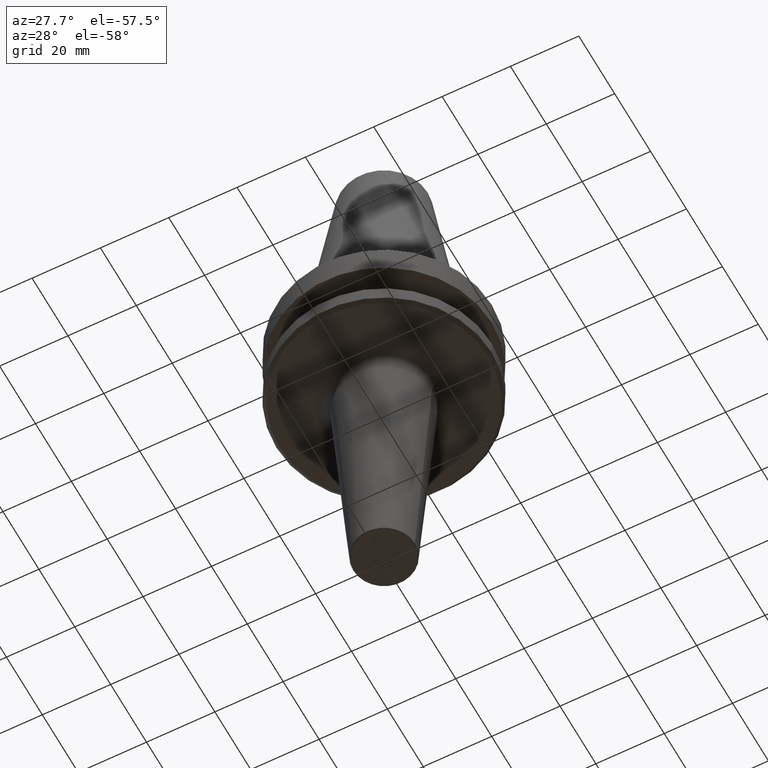
[diagram: clean part render]
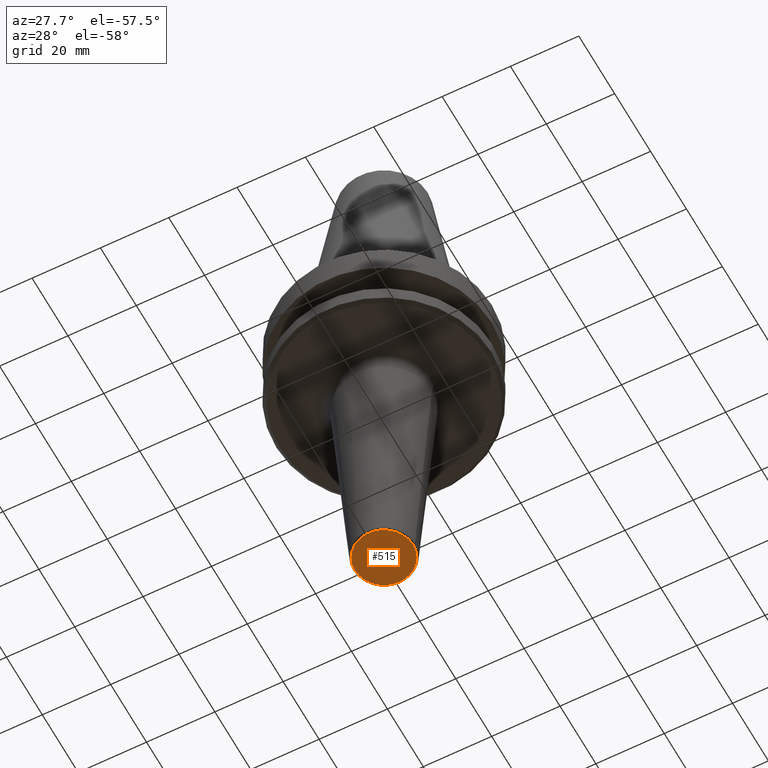
[diagram: same view with one face highlighted and labeled with its STEP entity id]
A machine part, auxiliary view. The second image highlights one B-rep face of the part: STEP entity #515.
In plain terms, the highlighted planar face has unit normal (0, 0, -1).
Its self-contained STEP definition (entity closure, byte-faithful):
#51 = VERTEX_POINT ( 'NONE', #604 ) ;
#202 = CARTESIAN_POINT ( 'NONE',  ( 8.534273255166967300, 0.0000000000000000000, -167.4000000000080200 ) ) ;
#269 = CARTESIAN_POINT ( 'NONE',  ( 0.0000000000000000000, 5.444263640425937500E-013, -167.4000000000080500 ) ) ;
#278 = DIRECTION ( 'NONE',  ( 1.000000000000000000, 0.0000000000000000000, 0.0000000000000000000 ) ) ;
#321 = VERTEX_POINT ( 'NONE', #202 ) ;
#358 = DIRECTION ( 'NONE',  ( -0.0000000000000000000, -0.0000000000000000000, 1.000000000000000000 ) ) ;
#400 = AXIS2_PLACEMENT_3D ( 'NONE', #802, #914, #992 ) ;
#480 = AXIS2_PLACEMENT_3D ( 'NONE', #269, #531, #680 ) ;
#515 = ADVANCED_FACE ( 'NONE', ( #603 ), #1028, .T. ) ;
#524 = EDGE_LOOP ( 'NONE', ( #700, #733 ) ) ;
#531 = DIRECTION ( 'NONE',  ( 0.0000000000000000000, 0.0000000000000000000, -1.000000000000000000 ) ) ;
#603 = FACE_OUTER_BOUND ( 'NONE', #524, .T. ) ;
#604 = CARTESIAN_POINT ( 'NONE',  ( -8.534273255166967300, 1.075686186646636700E-015, -167.4000000000080200 ) ) ;
#621 = CARTESIAN_POINT ( 'NONE',  ( 0.0000000000000000000, 0.0000000000000000000, -167.4000000000080200 ) ) ;
#680 = DIRECTION ( 'NONE',  ( -1.000000000000000000, 0.0000000000000000000, -0.0000000000000000000 ) ) ;
#699 = EDGE_CURVE ( 'NONE', #51, #321, #869, .T. ) ;
#700 = ORIENTED_EDGE ( 'NONE', *, *, #812, .F. ) ;
#733 = ORIENTED_EDGE ( 'NONE', *, *, #699, .F. ) ;
#790 = CIRCLE ( 'NONE', #400, 8.534273255166967300 ) ;
#802 = CARTESIAN_POINT ( 'NONE',  ( 0.0000000000000000000, 0.0000000000000000000, -167.4000000000080200 ) ) ;
#812 = EDGE_CURVE ( 'NONE', #321, #51, #790, .T. ) ;
#869 = CIRCLE ( 'NONE', #915, 8.534273255166967300 ) ;
#914 = DIRECTION ( 'NONE',  ( -0.0000000000000000000, -0.0000000000000000000, 1.000000000000000000 ) ) ;
#915 = AXIS2_PLACEMENT_3D ( 'NONE', #621, #358, #278 ) ;
#992 = DIRECTION ( 'NONE',  ( 1.000000000000000000, 0.0000000000000000000, 0.0000000000000000000 ) ) ;
#1028 = PLANE ( 'NONE',  #480 ) ;